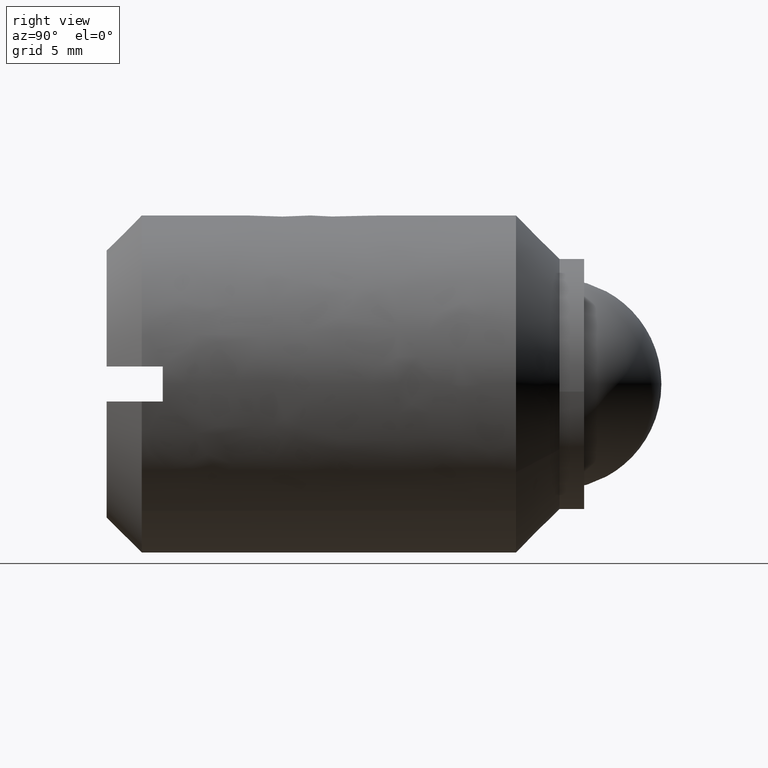
[diagram: clean part render]
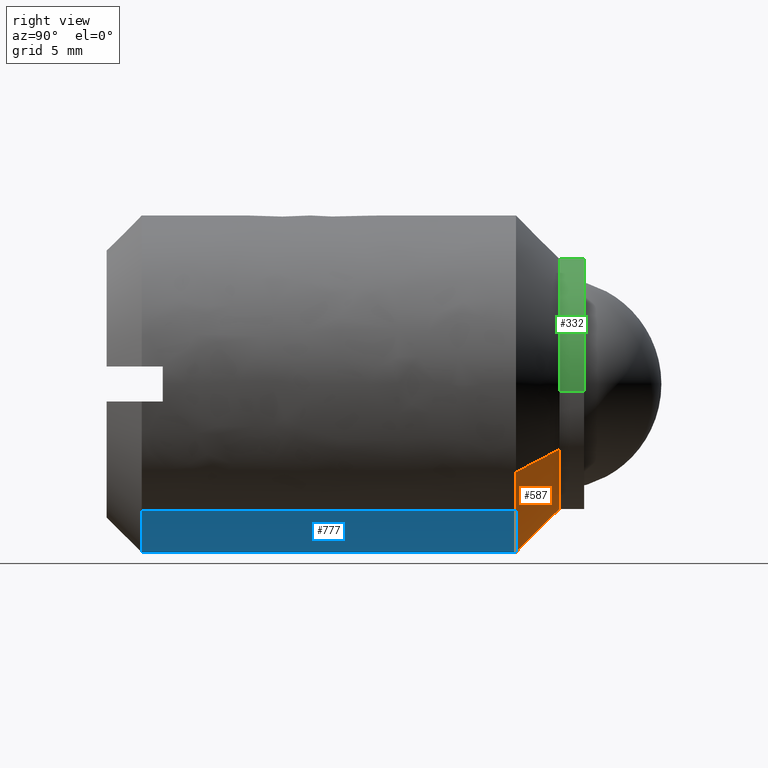
[diagram: same view with three faces highlighted in distinct colors, each labeled with its STEP entity id]
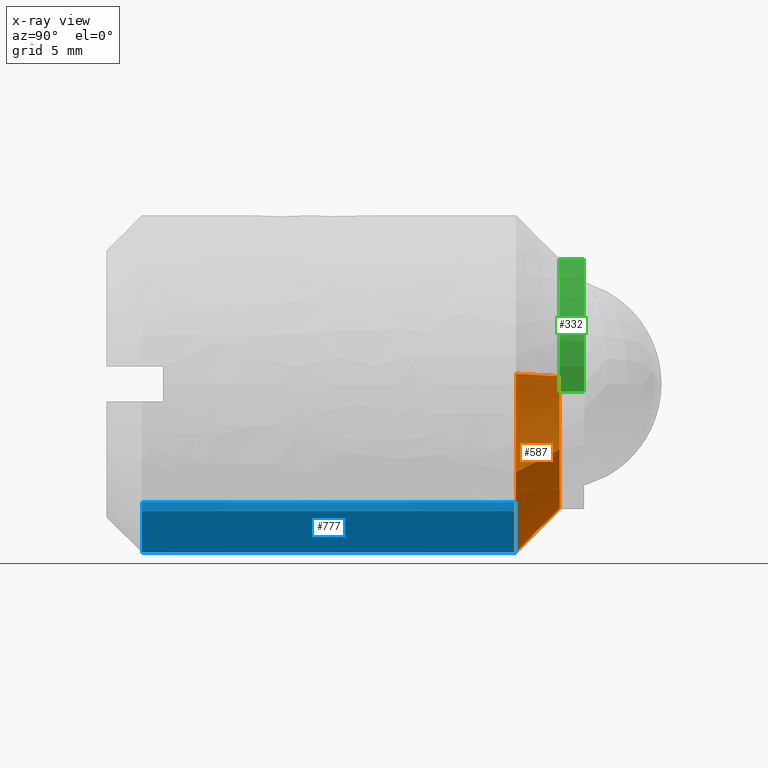
[diagram: x-ray of the same camera — body ghosted, the three highlighted faces saturated]
A machine part, right view with three faces highlighted in distinct colors.
The next image is the same camera in x-ray (body ghosted, the three faces saturated) — at least one of them is partly hidden behind the body in this view.
Their STEP definitions:

[orange] entity #587 — the highlighted face is a freeform B-spline surface patch.
#310=CARTESIAN_POINT('',(-8.883399705955075,-7.250000000002036,0.543332001866780));
#311=VERTEX_POINT('',#310);
#351=CARTESIAN_POINT('',(7.585456119837495,-7.250000000000375,-4.655196607451158));
#352=VERTEX_POINT('',#351);
#366=CARTESIAN_POINT('',(0.0,-7.250000000000100,-8.900000000000002));
#367=VERTEX_POINT('',#366);
#368=CARTESIAN_POINT('',(0.0,-7.250000000000100,-8.900000000000002));
#369=CARTESIAN_POINT('',(4.980419054150716,-7.250000000000101,-8.900000000000002));
#370=CARTESIAN_POINT('',(7.585456119837495,-7.250000000000375,-4.655196607451158));
#378=(BOUNDED_CURVE()B_SPLINE_CURVE(2,(#368,#369,#370),.UNSPECIFIED.,.F.,.U.)B_SPLINE_CURVE_WITH_KNOTS((3,3),(0.0,0.160617616591238),.UNSPECIFIED.)CURVE()GEOMETRIC_REPRESENTATION_ITEM()RATIONAL_B_SPLINE_CURVE((1.0,0.811824757113790,0.865443586338462))REPRESENTATION_ITEM(''));
#379=EDGE_CURVE('',#367,#352,#378,.T.);
#381=CARTESIAN_POINT('',(-8.883399705955075,-7.250000000002036,0.543332001866780));
#382=CARTESIAN_POINT('',(-8.900000000000000,-7.250000000000100,0.271919593370481));
#383=CARTESIAN_POINT('',(-8.900000000000000,-7.250000000000100,-2.571673E-015));
#384=CARTESIAN_POINT('',(-8.900000000000000,-7.250000000000100,-8.900000000000002));
#385=CARTESIAN_POINT('',(0.0,-7.250000000000100,-8.900000000000002));
#393=(BOUNDED_CURVE()B_SPLINE_CURVE(2,(#381,#382,#383,#384,#385),.UNSPECIFIED.,.F.,.U.)B_SPLINE_CURVE_WITH_KNOTS((3,2,3),(0.739332962241463,0.750000000000000,1.0),.UNSPECIFIED.)CURVE()GEOMETRIC_REPRESENTATION_ITEM()RATIONAL_B_SPLINE_CURVE((0.976072041672119,0.987502787902790,1.0,0.707106781186548,1.0))REPRESENTATION_ITEM(''));
#394=EDGE_CURVE('',#311,#367,#393,.T.);
#453=CARTESIAN_POINT('',(10.227581285169300,-10.350000000000980,-6.276669583089166));
#454=VERTEX_POINT('',#453);
#472=CARTESIAN_POINT('',(7.585456119837495,-7.250000000000375,-4.655196607451158));
#473=CARTESIAN_POINT('',(10.227581285169300,-10.350000000000980,-6.276669583089166));
#474=QUASI_UNIFORM_CURVE('',1,(#472,#473),.UNSPECIFIED.,.F.,.U.);
#475=EDGE_CURVE('',#352,#454,#474,.T.);
#480=CARTESIAN_POINT('',(-11.977617581065591,-10.350000000006011,0.732582474463767));
#481=VERTEX_POINT('',#480);
#482=CARTESIAN_POINT('',(-8.883399705955075,-7.250000000002036,0.543332001866780));
#483=CARTESIAN_POINT('',(-11.977617581065591,-10.350000000006011,0.732582474463767));
#484=QUASI_UNIFORM_CURVE('',1,(#482,#483),.UNSPECIFIED.,.F.,.U.);
#485=EDGE_CURVE('',#311,#481,#484,.T.);
#503=CARTESIAN_POINT('',(-8.806044259076920,-7.172500000000102,0.538600740046273));
#504=CARTESIAN_POINT('',(-9.344644999123196,-7.172500000000102,-8.267443519030646));
#505=CARTESIAN_POINT('',(-0.538600740046276,-7.172500000000102,-8.806044259076922));
#506=CARTESIAN_POINT('',(4.748688009489147,-7.172500000000101,-9.129428692490686));
#507=CARTESIAN_POINT('',(7.519402990706377,-7.172500000000099,-4.614659783056164));
#508=CARTESIAN_POINT('',(-12.056906914111931,-10.429437500000001,0.737432017777575));
#509=CARTESIAN_POINT('',(-12.794338931889508,-10.429437499999999,-11.319474896334356));
#510=CARTESIAN_POINT('',(-0.737432017777578,-10.429437500000001,-12.056906914111931));
#511=CARTESIAN_POINT('',(6.501726270062118,-10.429437499999997,-12.499672802680299));
#512=CARTESIAN_POINT('',(10.295285742538956,-10.429437499999997,-6.318219828074808));
#520=(BOUNDED_SURFACE()B_SPLINE_SURFACE(2,1,((#503,#508),(#504,#509),(#505,#510),(#506,#511),(#507,#512)),.UNSPECIFIED.,.F.,.F.,.U.)B_SPLINE_SURFACE_WITH_KNOTS((3,2,3),(2,2),(0.0,20.013867353352431,33.623297153632080),(0.0,4.606005184301374),.UNSPECIFIED.)GEOMETRIC_REPRESENTATION_ITEM()RATIONAL_B_SPLINE_SURFACE(((1.0,1.0),(0.707106781186548,0.707106781186548),(1.0,1.0),(0.800832611206852,0.800832611206852),(0.872532871172386,0.872532871172386)))REPRESENTATION_ITEM('')SURFACE());
#521=CARTESIAN_POINT('',(7.907633907891853,-10.350000000000000,-9.026036005842066));
#522=VERTEX_POINT('',#521);
#523=CARTESIAN_POINT('',(7.907633907891853,-10.349999999999998,-9.026036005842066));
#524=CARTESIAN_POINT('',(9.276014710696218,-10.350000000000003,-7.827209142293152));
#525=CARTESIAN_POINT('',(10.227581285169304,-10.350000000000975,-6.276669583089166));
#533=(BOUNDED_CURVE()B_SPLINE_CURVE(2,(#523,#524,#525),.UNSPECIFIED.,.F.,.U.)B_SPLINE_CURVE_WITH_KNOTS((3,3),(0.115045263890947,0.160617616590979),.UNSPECIFIED.)CURVE()GEOMETRIC_REPRESENTATION_ITEM()RATIONAL_B_SPLINE_CURVE((0.854482183304713,0.850230210317461,0.865443586338289))REPRESENTATION_ITEM(''));
#534=EDGE_CURVE('',#522,#454,#533,.T.);
#535=ORIENTED_EDGE('',*,*,#534,.F.);
#536=CARTESIAN_POINT('',(0.0,-10.350000000000000,-12.0));
#537=VERTEX_POINT('',#536);
#538=CARTESIAN_POINT('',(0.0,-10.350000000000000,-12.0));
#539=CARTESIAN_POINT('',(4.513052620490948,-10.350000000000000,-12.000000000000002));
#540=CARTESIAN_POINT('',(7.907633907891853,-10.349999999999998,-9.026036005842066));
#548=(BOUNDED_CURVE()B_SPLINE_CURVE(2,(#538,#539,#540),.UNSPECIFIED.,.F.,.U.)B_SPLINE_CURVE_WITH_KNOTS((3,3),(0.0,0.115045263890947),.UNSPECIFIED.)CURVE()GEOMETRIC_REPRESENTATION_ITEM()RATIONAL_B_SPLINE_CURVE((1.0,0.865216089398950,0.854482183304713))REPRESENTATION_ITEM(''));
#549=EDGE_CURVE('',#537,#522,#548,.T.);
#550=ORIENTED_EDGE('',*,*,#549,.F.);
#551=CARTESIAN_POINT('',(-8.559016019970436,-10.350000000000000,-8.410900354281903));
#552=VERTEX_POINT('',#551);
#553=CARTESIAN_POINT('',(-8.559016019970436,-10.349999999999996,-8.410900354281903));
#554=CARTESIAN_POINT('',(-5.032026537631244,-10.349999999999998,-12.000000000000007));
#555=CARTESIAN_POINT('',(0.0,-10.350000000000000,-12.0));
#563=(BOUNDED_CURVE()B_SPLINE_CURVE(2,(#553,#554,#555),.UNSPECIFIED.,.F.,.U.)B_SPLINE_CURVE_WITH_KNOTS((3,3),(0.873683051704970,1.0),.UNSPECIFIED.)CURVE()GEOMETRIC_REPRESENTATION_ITEM()RATIONAL_B_SPLINE_CURVE((0.853569645958957,0.852010489692705,1.0))REPRESENTATION_ITEM(''));
#564=EDGE_CURVE('',#552,#537,#563,.T.);
#565=ORIENTED_EDGE('',*,*,#564,.F.);
#566=CARTESIAN_POINT('',(-11.977617581065587,-10.350000000006006,0.732582474463767));
#567=CARTESIAN_POINT('',(-11.999999999999995,-10.350000000000001,0.366633159628313));
#568=CARTESIAN_POINT('',(-12.0,-10.350000000000000,-2.571673E-015));
#569=CARTESIAN_POINT('',(-12.000000000000004,-10.350000000000001,-4.909320764835662));
#570=CARTESIAN_POINT('',(-8.559016019970436,-10.349999999999996,-8.410900354281903));
#578=(BOUNDED_CURVE()B_SPLINE_CURVE(2,(#566,#567,#568,#569,#570),.UNSPECIFIED.,.F.,.U.)B_SPLINE_CURVE_WITH_KNOTS((3,2,3),(0.739332962240668,0.750000000000000,0.873683051704970),.UNSPECIFIED.)CURVE()GEOMETRIC_REPRESENTATION_ITEM()RATIONAL_B_SPLINE_CURVE((0.976072041670415,0.987502787901859,1.0,0.855096291493842,0.853569645958957))REPRESENTATION_ITEM(''));
#579=EDGE_CURVE('',#481,#552,#578,.T.);
#580=ORIENTED_EDGE('',*,*,#579,.F.);
#581=ORIENTED_EDGE('',*,*,#485,.F.);
#582=ORIENTED_EDGE('',*,*,#394,.T.);
#583=ORIENTED_EDGE('',*,*,#379,.T.);
#584=ORIENTED_EDGE('',*,*,#475,.T.);
#585=EDGE_LOOP('',(#535,#550,#565,#580,#581,#582,#583,#584));
#586=FACE_OUTER_BOUND('',#585,.T.);
#587=ADVANCED_FACE('',(#586),#520,.T.);

[blue] entity #777 — the highlighted face is a freeform B-spline surface patch.
#521=CARTESIAN_POINT('',(7.907633907891853,-10.350000000000000,-9.026036005842066));
#522=VERTEX_POINT('',#521);
#536=CARTESIAN_POINT('',(0.0,-10.350000000000000,-12.0));
#537=VERTEX_POINT('',#536);
#538=CARTESIAN_POINT('',(0.0,-10.350000000000000,-12.0));
#539=CARTESIAN_POINT('',(4.513052620490948,-10.350000000000000,-12.000000000000002));
#540=CARTESIAN_POINT('',(7.907633907891853,-10.349999999999998,-9.026036005842066));
#548=(BOUNDED_CURVE()B_SPLINE_CURVE(2,(#538,#539,#540),.UNSPECIFIED.,.F.,.U.)B_SPLINE_CURVE_WITH_KNOTS((3,3),(0.0,0.115045263890947),.UNSPECIFIED.)CURVE()GEOMETRIC_REPRESENTATION_ITEM()RATIONAL_B_SPLINE_CURVE((1.0,0.865216089398950,0.854482183304713))REPRESENTATION_ITEM(''));
#549=EDGE_CURVE('',#537,#522,#548,.T.);
#551=CARTESIAN_POINT('',(-8.559016019970436,-10.350000000000000,-8.410900354281903));
#552=VERTEX_POINT('',#551);
#553=CARTESIAN_POINT('',(-8.559016019970436,-10.349999999999996,-8.410900354281903));
#554=CARTESIAN_POINT('',(-5.032026537631244,-10.349999999999998,-12.000000000000007));
#555=CARTESIAN_POINT('',(0.0,-10.350000000000000,-12.0));
#563=(BOUNDED_CURVE()B_SPLINE_CURVE(2,(#553,#554,#555),.UNSPECIFIED.,.F.,.U.)B_SPLINE_CURVE_WITH_KNOTS((3,3),(0.873683051704970,1.0),.UNSPECIFIED.)CURVE()GEOMETRIC_REPRESENTATION_ITEM()RATIONAL_B_SPLINE_CURVE((0.853569645958957,0.852010489692705,1.0))REPRESENTATION_ITEM(''));
#564=EDGE_CURVE('',#552,#537,#563,.T.);
#614=CARTESIAN_POINT('',(7.907634641947571,-37.0,-9.026035362742084));
#615=VERTEX_POINT('',#614);
#631=CARTESIAN_POINT('',(7.907633907891853,-10.350000000000000,-9.026036005842066));
#632=CARTESIAN_POINT('',(7.907634641947571,-37.0,-9.026035362742084));
#633=QUASI_UNIFORM_CURVE('',1,(#631,#632),.UNSPECIFIED.,.F.,.U.);
#634=EDGE_CURVE('',#522,#615,#633,.T.);
#640=CARTESIAN_POINT('',(-8.559005889002759,-36.999999999999972,-8.410910663656793));
#641=VERTEX_POINT('',#640);
#642=CARTESIAN_POINT('',(-8.559016019970436,-10.350000000000000,-8.410900354281903));
#643=CARTESIAN_POINT('',(-8.559005889002759,-36.999999999999972,-8.410910663656793));
#644=QUASI_UNIFORM_CURVE('',1,(#642,#643),.UNSPECIFIED.,.F.,.U.);
#645=EDGE_CURVE('',#552,#641,#644,.T.);
#738=CARTESIAN_POINT('',(-8.615951080744052,-9.683749999999995,-8.352962815546693));
#739=CARTESIAN_POINT('',(-8.587518216182540,-9.683749999999995,-8.381896308727864));
#740=CARTESIAN_POINT('',(-0.616132492251538,-9.683749999999998,-16.493637353632511));
#741=CARTESIAN_POINT('',(7.938933723357414,-9.683749999999996,-8.998614496009187));
#742=CARTESIAN_POINT('',(7.970149971565586,-9.683749999999998,-8.971266198760173));
#743=CARTESIAN_POINT('',(-8.615951080744052,-37.682906250000002,-8.352962815546693));
#744=CARTESIAN_POINT('',(-8.587518216182540,-37.682906250000002,-8.381896308727864));
#745=CARTESIAN_POINT('',(-0.616132492251538,-37.682906250000016,-16.493637353632511));
#746=CARTESIAN_POINT('',(7.938933723357414,-37.682906250000016,-8.998614496009187));
#747=CARTESIAN_POINT('',(7.970149971565586,-37.682906250000016,-8.971266198760173));
#755=(BOUNDED_SURFACE()B_SPLINE_SURFACE(2,1,((#738,#743),(#739,#744),(#740,#745),(#741,#746),(#742,#747)),.UNSPECIFIED.,.F.,.F.,.U.)B_SPLINE_SURFACE_WITH_KNOTS((3,1,1,3),(2,2),(0.0,0.095426461941200,19.177149166446679,19.272557524033779),(0.0,27.999156250000031),.UNSPECIFIED.)GEOMETRIC_REPRESENTATION_ITEM()RATIONAL_B_SPLINE_SURFACE(((1.002812300909046,1.002812300909046),(1.001406150454523,1.001406150454523),(0.718822509939086,0.718822509939086),(0.978799213779793,0.978799213779793),(0.980092626764458,0.980092626764458)))REPRESENTATION_ITEM('')SURFACE());
#756=CARTESIAN_POINT('',(-8.559005889002759,-36.999999999999972,-8.410910663656793));
#757=CARTESIAN_POINT('',(-5.032018458476447,-37.0,-12.000000000000005));
#758=CARTESIAN_POINT('',(0.0,-37.0,-12.0));
#759=CARTESIAN_POINT('',(4.513053007525511,-37.0,-12.000000000000002));
#760=CARTESIAN_POINT('',(7.907634641947570,-37.000000000000007,-9.026035362742084));
#768=(BOUNDED_CURVE()B_SPLINE_CURVE(2,(#756,#757,#758,#759,#760),.UNSPECIFIED.,.F.,.U.)B_SPLINE_CURVE_WITH_KNOTS((3,2,3),(0.230166470996835,0.500000000000000,0.745516412150955),.UNSPECIFIED.)CURVE()GEOMETRIC_REPRESENTATION_ITEM()RATIONAL_B_SPLINE_CURVE((0.872320245780594,0.861318034652881,1.0,0.873815909061219,0.871552879233715))REPRESENTATION_ITEM(''));
#769=EDGE_CURVE('',#641,#615,#768,.T.);
#770=ORIENTED_EDGE('',*,*,#769,.F.);
#771=ORIENTED_EDGE('',*,*,#645,.F.);
#772=ORIENTED_EDGE('',*,*,#564,.T.);
#773=ORIENTED_EDGE('',*,*,#549,.T.);
#774=ORIENTED_EDGE('',*,*,#634,.T.);
#775=EDGE_LOOP('',(#770,#771,#772,#773,#774));
#776=FACE_OUTER_BOUND('',#775,.T.);
#777=ADVANCED_FACE('',(#776),#755,.T.);

[green] entity #332 — the highlighted face is a freeform B-spline surface patch.
#234=CARTESIAN_POINT('',(8.883399705954613,-5.456249999999996,-0.543332001860230));
#235=CARTESIAN_POINT('',(9.426731707814840,-5.456249999999995,8.340067704094384));
#236=CARTESIAN_POINT('',(0.543332001860227,-5.456249999999996,8.883399705954611));
#237=CARTESIAN_POINT('',(-8.340067704094386,-5.456249999999995,9.426731707814838));
#238=CARTESIAN_POINT('',(-8.883399705954613,-5.456249999999996,0.543332001860225));
#239=CARTESIAN_POINT('',(8.883399705954613,-7.294843750000104,-0.543332001860230));
#240=CARTESIAN_POINT('',(9.426731707814840,-7.294843750000104,8.340067704094384));
#241=CARTESIAN_POINT('',(0.543332001860227,-7.294843750000104,8.883399705954611));
#242=CARTESIAN_POINT('',(-8.340067704094386,-7.294843750000104,9.426731707814838));
#243=CARTESIAN_POINT('',(-8.883399705954613,-7.294843750000104,0.543332001860225));
#251=(BOUNDED_SURFACE()B_SPLINE_SURFACE(2,1,((#234,#239),(#235,#240),(#236,#241),(#237,#242),(#238,#243)),.UNSPECIFIED.,.F.,.F.,.U.)B_SPLINE_SURFACE_WITH_KNOTS((3,2,3),(2,2),(0.0,14.746002820482181,29.492005640964368),(0.0,1.0),.UNSPECIFIED.)GEOMETRIC_REPRESENTATION_ITEM()RATIONAL_B_SPLINE_SURFACE(((1.0,1.0),(0.707106781186548,0.707106781186548),(1.0,1.0),(0.707106781186548,0.707106781186548),(1.0,1.0)))REPRESENTATION_ITEM('')SURFACE());
#252=CARTESIAN_POINT('',(8.883400014661509,-7.249999999999981,-0.543326954500055));
#253=VERTEX_POINT('',#252);
#254=CARTESIAN_POINT('',(0.0,-7.250000000000100,8.899999999999999));
#255=VERTEX_POINT('',#254);
#256=CARTESIAN_POINT('',(8.883400014661509,-7.249999999999981,-0.543326954500055));
#257=CARTESIAN_POINT('',(8.900000000000000,-7.250000000000100,-0.271917062601313));
#258=CARTESIAN_POINT('',(8.900000000000000,-7.250000000000100,-2.571673E-015));
#259=CARTESIAN_POINT('',(8.900000000000000,-7.250000000000100,8.899999999999999));
#260=CARTESIAN_POINT('',(0.0,-7.250000000000100,8.899999999999999));
#268=(BOUNDED_CURVE()B_SPLINE_CURVE(2,(#256,#257,#258,#259,#260),.UNSPECIFIED.,.F.,.U.)B_SPLINE_CURVE_WITH_KNOTS((3,2,3),(0.239333060279419,0.250000000000000,0.500000000000000),.UNSPECIFIED.)CURVE()GEOMETRIC_REPRESENTATION_ITEM()RATIONAL_B_SPLINE_CURVE((0.976072251786210,0.987502902761400,1.0,0.707106781186548,1.0))REPRESENTATION_ITEM(''));
#269=EDGE_CURVE('',#253,#255,#268,.T.);
#270=ORIENTED_EDGE('',*,*,#269,.F.);
#271=CARTESIAN_POINT('',(8.883400044957174,-5.500000000000000,-0.543326459160618));
#272=VERTEX_POINT('',#271);
#273=CARTESIAN_POINT('',(8.883400044957174,-5.500000000000000,-0.543326459160618));
#274=CARTESIAN_POINT('',(8.883400014661509,-7.249999999999981,-0.543326954500055));
#275=QUASI_UNIFORM_CURVE('',1,(#273,#274),.UNSPECIFIED.,.F.,.U.);
#276=EDGE_CURVE('',#272,#253,#275,.T.);
#277=ORIENTED_EDGE('',*,*,#276,.F.);
#278=CARTESIAN_POINT('',(0.0,-5.500000000000000,8.899999999999999));
#279=VERTEX_POINT('',#278);
#280=CARTESIAN_POINT('',(8.883400044957174,-5.500000000000000,-0.543326459160618));
#281=CARTESIAN_POINT('',(8.900000000000000,-5.500000000000001,-0.271916814237175));
#282=CARTESIAN_POINT('',(8.900000000000000,-5.500000000000000,-2.571673E-015));
#283=CARTESIAN_POINT('',(8.900000000000000,-5.500000000000001,8.899999999999999));
#284=CARTESIAN_POINT('',(0.0,-5.500000000000000,8.899999999999999));
#292=(BOUNDED_CURVE()B_SPLINE_CURVE(2,(#280,#281,#282,#283,#284),.UNSPECIFIED.,.F.,.U.)B_SPLINE_CURVE_WITH_KNOTS((3,2,3),(0.239333069900650,0.250000000000000,0.500000000000000),.UNSPECIFIED.)CURVE()GEOMETRIC_REPRESENTATION_ITEM()RATIONAL_B_SPLINE_CURVE((0.976072272406359,0.987502914033373,1.0,0.707106781186548,1.0))REPRESENTATION_ITEM(''));
#293=EDGE_CURVE('',#272,#279,#292,.T.);
#294=ORIENTED_EDGE('',*,*,#293,.T.);
#295=CARTESIAN_POINT('',(-8.883400044957174,-5.500000000000000,0.543326459160610));
#296=VERTEX_POINT('',#295);
#297=CARTESIAN_POINT('',(0.0,-5.500000000000000,8.899999999999999));
#298=CARTESIAN_POINT('',(-8.372289229018241,-5.500000000000001,8.899999999999997));
#299=CARTESIAN_POINT('',(-8.883400044957174,-5.500000000000000,0.543326459160610));
#307=(BOUNDED_CURVE()B_SPLINE_CURVE(2,(#297,#298,#299),.UNSPECIFIED.,.F.,.U.)B_SPLINE_CURVE_WITH_KNOTS((3,3),(0.500000000000000,0.739333069900650),.UNSPECIFIED.)CURVE()GEOMETRIC_REPRESENTATION_ITEM()RATIONAL_B_SPLINE_CURVE((1.0,0.719603867153174,0.976072272406359))REPRESENTATION_ITEM(''));
#308=EDGE_CURVE('',#279,#296,#307,.T.);
#309=ORIENTED_EDGE('',*,*,#308,.T.);
#310=CARTESIAN_POINT('',(-8.883399705955075,-7.250000000002036,0.543332001866780));
#311=VERTEX_POINT('',#310);
#312=CARTESIAN_POINT('',(-8.883400044957174,-5.500000000000000,0.543326459160610));
#313=CARTESIAN_POINT('',(-8.883399705955075,-7.250000000002036,0.543332001866780));
#314=QUASI_UNIFORM_CURVE('',1,(#312,#313),.UNSPECIFIED.,.F.,.U.);
#315=EDGE_CURVE('',#296,#311,#314,.T.);
#316=ORIENTED_EDGE('',*,*,#315,.T.);
#317=CARTESIAN_POINT('',(0.0,-7.250000000000100,8.899999999999999));
#318=CARTESIAN_POINT('',(-8.372283995436124,-7.250000000000100,8.899999999999999));
#319=CARTESIAN_POINT('',(-8.883399705955075,-7.250000000002036,0.543332001866780));
#327=(BOUNDED_CURVE()B_SPLINE_CURVE(2,(#317,#318,#319),.UNSPECIFIED.,.F.,.U.)B_SPLINE_CURVE_WITH_KNOTS((3,3),(0.500000000000000,0.739332962241463),.UNSPECIFIED.)CURVE()GEOMETRIC_REPRESENTATION_ITEM()RATIONAL_B_SPLINE_CURVE((1.0,0.719603993283758,0.976072041672119))REPRESENTATION_ITEM(''));
#328=EDGE_CURVE('',#255,#311,#327,.T.);
#329=ORIENTED_EDGE('',*,*,#328,.F.);
#330=EDGE_LOOP('',(#270,#277,#294,#309,#316,#329));
#331=FACE_OUTER_BOUND('',#330,.T.);
#332=ADVANCED_FACE('',(#331),#251,.T.);